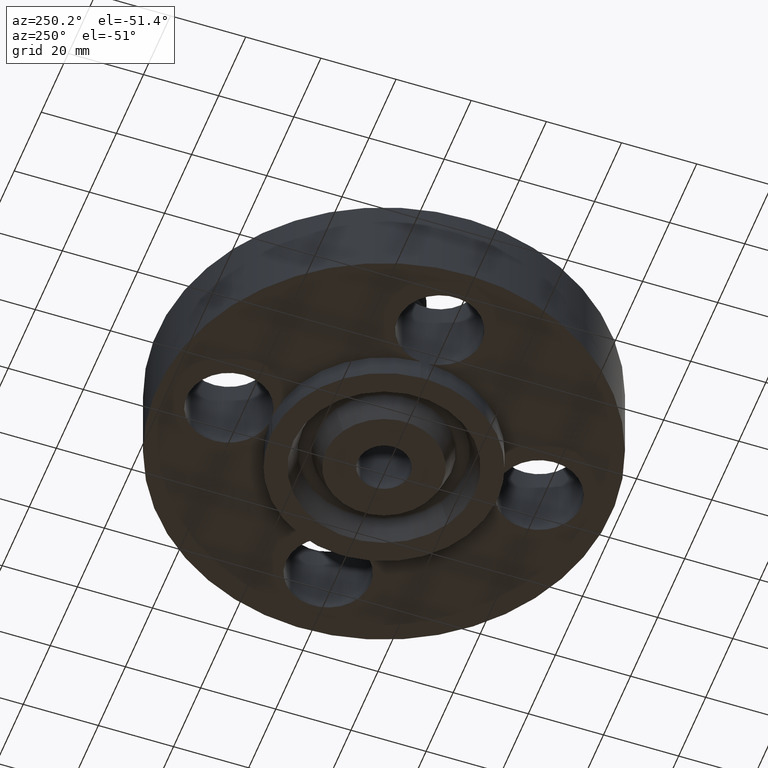
[diagram: clean part render]
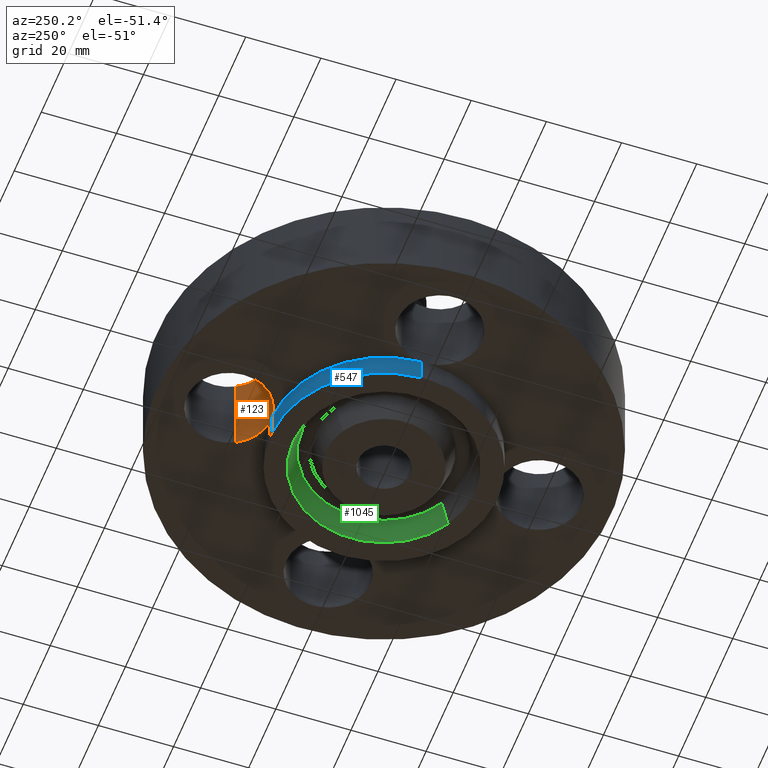
[diagram: same view with three faces highlighted in distinct colors, each labeled with its STEP entity id]
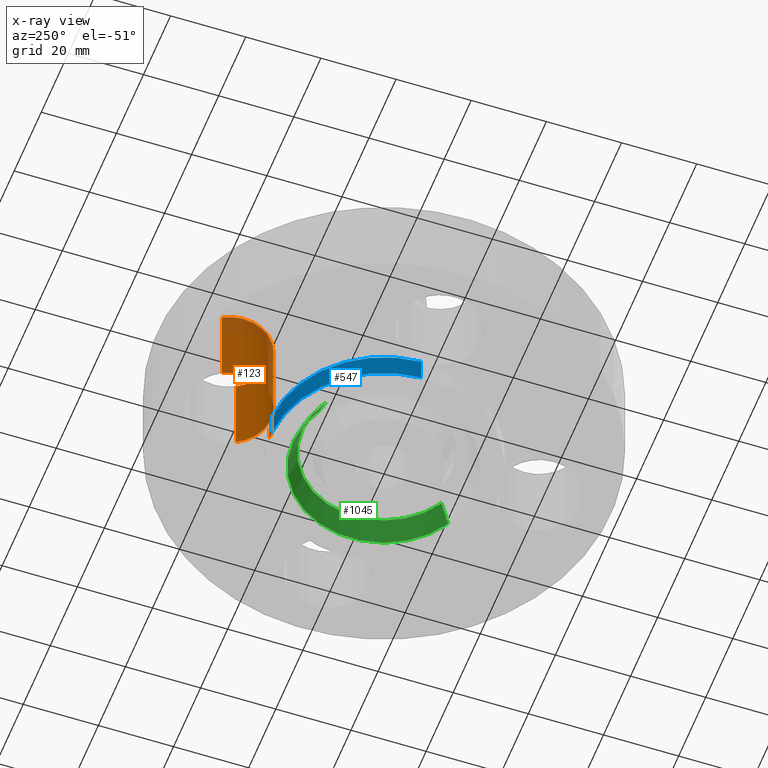
[diagram: x-ray of the same camera — body ghosted, the three highlighted faces saturated]
A machine part, auxiliary view with three faces highlighted in distinct colors.
The next image is the same camera in x-ray (body ghosted, the three faces saturated) — at least one of them is partly hidden behind the body in this view.
Their STEP definitions:

[orange] entity #123 — the highlighted cylindrical surface (partial cylindrical patch) has radius 11.176 mm, axis along (0, -0, -1).
#38=AXIS2_PLACEMENT_3D('Cylinder Axis2P3D',#35,#36,#37) ;
#77=AXIS2_PLACEMENT_3D('Circle Axis2P3D',#75,#76,$) ;
#91=AXIS2_PLACEMENT_3D('Circle Axis2P3D',#89,#90,$) ;
#105=AXIS2_PLACEMENT_3D('Circle Axis2P3D',#103,#104,$) ;
#110=AXIS2_PLACEMENT_3D('Circle Axis2P3D',#108,#109,$) ;
#35=CARTESIAN_POINT('Axis2P3D Location',(0.,1.62500000001,0.87606299213)) ;
#40=CARTESIAN_POINT('Line Origine',(-0.386136327233,1.83594723699,0.315000000001)) ;
#44=CARTESIAN_POINT('Vertex',(-0.386136327233,1.83594723699,0.)) ;
#46=CARTESIAN_POINT('Vertex',(-0.386136327233,1.83594723699,0.880000000004)) ;
#53=CARTESIAN_POINT('Vertex',(0.386136327233,1.41405276302,0.)) ;
#56=CARTESIAN_POINT('Line Origine',(0.386136327233,1.41405276302,0.315000000001)) ;
#60=CARTESIAN_POINT('Vertex',(0.386136327233,1.41405276302,0.880000000004)) ;
#75=CARTESIAN_POINT('Axis2P3D Location',(0.,1.62500000001,0.)) ;
#79=CARTESIAN_POINT('Vertex',(0.0400333532821,1.186825,0.)) ;
#82=CARTESIAN_POINT('Line Origine',(0.0400333532821,1.186825,0.315000000001)) ;
#86=CARTESIAN_POINT('Vertex',(0.0400333532822,1.186825,-0.250000000001)) ;
#89=CARTESIAN_POINT('Axis2P3D Location',(0.,1.62500000001,-0.250000000001)) ;
#93=CARTESIAN_POINT('Vertex',(-0.0400333532822,1.186825,-0.250000000001)) ;
#96=CARTESIAN_POINT('Line Origine',(-0.0400333532821,1.186825,0.315000000001)) ;
#100=CARTESIAN_POINT('Vertex',(-0.0400333532821,1.186825,0.)) ;
#103=CARTESIAN_POINT('Axis2P3D Location',(0.,1.62500000001,0.)) ;
#108=CARTESIAN_POINT('Axis2P3D Location',(0.,1.62500000001,0.880000000004)) ;
#36=DIRECTION('Axis2P3D Direction',(0.,-0.,-0.0393700787402)) ;
#37=DIRECTION('Axis2P3D XDirection',(0.0345504945626,-0.0188750212049,0.)) ;
#41=DIRECTION('Vector Direction',(0.,0.,-0.0393700787402)) ;
#57=DIRECTION('Vector Direction',(0.,0.,-0.0393700787402)) ;
#76=DIRECTION('Axis2P3D Direction',(0.,-0.,-0.0393700787402)) ;
#83=DIRECTION('Vector Direction',(0.,0.,-0.0393700787402)) ;
#90=DIRECTION('Axis2P3D Direction',(0.,-0.,-0.0393700787402)) ;
#97=DIRECTION('Vector Direction',(0.,0.,-0.0393700787402)) ;
#104=DIRECTION('Axis2P3D Direction',(0.,-0.,-0.0393700787402)) ;
#109=DIRECTION('Axis2P3D Direction',(0.,-0.,-0.0393700787402)) ;
#42=VECTOR('Line Direction',#41,0.0393700787402) ;
#58=VECTOR('Line Direction',#57,0.0393700787402) ;
#84=VECTOR('Line Direction',#83,0.0393700787402) ;
#98=VECTOR('Line Direction',#97,0.0393700787402) ;
#114=ORIENTED_EDGE('',*,*,#62,.F.) ;
#115=ORIENTED_EDGE('',*,*,#81,.T.) ;
#116=ORIENTED_EDGE('',*,*,#88,.T.) ;
#117=ORIENTED_EDGE('',*,*,#95,.T.) ;
#118=ORIENTED_EDGE('',*,*,#102,.F.) ;
#119=ORIENTED_EDGE('',*,*,#107,.T.) ;
#120=ORIENTED_EDGE('',*,*,#48,.T.) ;
#121=ORIENTED_EDGE('',*,*,#112,.F.) ;
#123=ADVANCED_FACE('PartBody',(#122),#39,.F.) ;
#78=CIRCLE('generated circle',#77,0.440000000002) ;
#92=CIRCLE('generated circle',#91,0.440000000002) ;
#106=CIRCLE('generated circle',#105,0.440000000002) ;
#111=CIRCLE('generated circle',#110,0.440000000002) ;
#39=CYLINDRICAL_SURFACE('generated cylinder',#38,0.440000000002) ;
#48=EDGE_CURVE('',#45,#47,#43,.F.) ;
#62=EDGE_CURVE('',#54,#61,#59,.F.) ;
#81=EDGE_CURVE('',#54,#80,#78,.T.) ;
#88=EDGE_CURVE('',#80,#87,#85,.T.) ;
#95=EDGE_CURVE('',#87,#94,#92,.T.) ;
#102=EDGE_CURVE('',#101,#94,#99,.T.) ;
#107=EDGE_CURVE('',#101,#45,#106,.T.) ;
#112=EDGE_CURVE('',#61,#47,#111,.T.) ;
#113=EDGE_LOOP('',(#114,#115,#116,#117,#118,#119,#120,#121)) ;
#122=FACE_OUTER_BOUND('',#113,.T.) ;
#43=LINE('Line',#40,#42) ;
#59=LINE('Line',#56,#58) ;
#85=LINE('Line',#82,#84) ;
#99=LINE('Line',#96,#98) ;
#45=VERTEX_POINT('',#44) ;
#47=VERTEX_POINT('',#46) ;
#54=VERTEX_POINT('',#53) ;
#61=VERTEX_POINT('',#60) ;
#80=VERTEX_POINT('',#79) ;
#87=VERTEX_POINT('',#86) ;
#94=VERTEX_POINT('',#93) ;
#101=VERTEX_POINT('',#100) ;

[blue] entity #547 — the highlighted cylindrical surface (partial cylindrical patch) has radius 30.1625 mm, axis along (0, 0, -1).
#127=AXIS2_PLACEMENT_3D('Cylinder Axis2P3D',#124,#125,#126) ;
#524=AXIS2_PLACEMENT_3D('Circle Axis2P3D',#522,#523,$) ;
#531=AXIS2_PLACEMENT_3D('Circle Axis2P3D',#529,#530,$) ;
#93=CARTESIAN_POINT('Vertex',(-0.0400333532822,1.186825,-0.250000000001)) ;
#96=CARTESIAN_POINT('Line Origine',(-0.0400333532821,1.186825,0.315000000001)) ;
#100=CARTESIAN_POINT('Vertex',(-0.0400333532821,1.186825,0.)) ;
#124=CARTESIAN_POINT('Axis2P3D Location',(0.,0.,1.065)) ;
#522=CARTESIAN_POINT('Axis2P3D Location',(0.,0.,0.)) ;
#526=CARTESIAN_POINT('Vertex',(-1.186825,0.0400333532821,0.)) ;
#529=CARTESIAN_POINT('Axis2P3D Location',(0.,0.,-0.250000000001)) ;
#533=CARTESIAN_POINT('Vertex',(-1.186825,0.0400333532821,-0.250000000001)) ;
#536=CARTESIAN_POINT('Line Origine',(-1.186825,0.0400333532821,-0.125000000001)) ;
#97=DIRECTION('Vector Direction',(0.,0.,-0.0393700787402)) ;
#125=DIRECTION('Axis2P3D Direction',(0.,0.,-0.0393700787402)) ;
#126=DIRECTION('Axis2P3D XDirection',(0.0188750212049,0.0345504945626,0.)) ;
#523=DIRECTION('Axis2P3D Direction',(0.,0.,-0.0393700787402)) ;
#530=DIRECTION('Axis2P3D Direction',(0.,0.,-0.0393700787402)) ;
#537=DIRECTION('Vector Direction',(0.,0.,-0.0393700787402)) ;
#98=VECTOR('Line Direction',#97,0.0393700787402) ;
#538=VECTOR('Line Direction',#537,0.0393700787402) ;
#542=ORIENTED_EDGE('',*,*,#528,.T.) ;
#543=ORIENTED_EDGE('',*,*,#102,.T.) ;
#544=ORIENTED_EDGE('',*,*,#535,.F.) ;
#545=ORIENTED_EDGE('',*,*,#540,.F.) ;
#547=ADVANCED_FACE('PartBody',(#546),#128,.T.) ;
#525=CIRCLE('generated circle',#524,1.1875) ;
#532=CIRCLE('generated circle',#531,1.1875) ;
#128=CYLINDRICAL_SURFACE('generated cylinder',#127,1.1875) ;
#102=EDGE_CURVE('',#101,#94,#99,.T.) ;
#528=EDGE_CURVE('',#527,#101,#525,.T.) ;
#535=EDGE_CURVE('',#534,#94,#532,.T.) ;
#540=EDGE_CURVE('',#527,#534,#539,.T.) ;
#541=EDGE_LOOP('',(#542,#543,#544,#545)) ;
#546=FACE_OUTER_BOUND('',#541,.T.) ;
#99=LINE('Line',#96,#98) ;
#539=LINE('Line',#536,#538) ;
#94=VERTEX_POINT('',#93) ;
#101=VERTEX_POINT('',#100) ;
#527=VERTEX_POINT('',#526) ;
#534=VERTEX_POINT('',#533) ;

[green] entity #1045 — the highlighted conical surface has half-angle 23 deg.
#906=AXIS2_PLACEMENT_3D('Circle Axis2P3D',#904,#905,$) ;
#980=AXIS2_PLACEMENT_3D('Cone Axis2P3D',#977,#978,#979) ;
#1001=AXIS2_PLACEMENT_3D('Circle Axis2P3D',#999,#1000,$) ;
#899=CARTESIAN_POINT('Vertex',(0.457132251061,-0.836774972766,-0.250000000001)) ;
#901=CARTESIAN_POINT('Vertex',(-0.457132251061,0.836774972766,-0.250000000001)) ;
#904=CARTESIAN_POINT('Axis2P3D Location',(1.04902962957E-016,-6.99353086378E-017,-0.250000000001)) ;
#946=CARTESIAN_POINT('Vertex',(-0.410099883712,0.750682801811,-0.0188873350169)) ;
#948=CARTESIAN_POINT('Vertex',(0.410099883712,-0.750682801811,-0.0188873350169)) ;
#977=CARTESIAN_POINT('Axis2P3D Location',(0.,0.,-0.0188873350169)) ;
#982=CARTESIAN_POINT('Line Origine',(-0.433616067387,0.793728887289,-0.134443667509)) ;
#987=CARTESIAN_POINT('Line Origine',(0.433616067387,-0.793728887289,-0.134443667509)) ;
#999=CARTESIAN_POINT('Axis2P3D Location',(0.,0.,-0.0188873350169)) ;
#905=DIRECTION('Axis2P3D Direction',(0.,0.,-0.0393700787402)) ;
#978=DIRECTION('Axis2P3D Direction',(-0.,-0.,-0.0393700787402)) ;
#979=DIRECTION('Axis2P3D XDirection',(-0.0188750212049,0.0345504945626,0.)) ;
#983=DIRECTION('Vector Direction',(-0.00737505833565,0.0134999537303,-0.0362403485611)) ;
#988=DIRECTION('Vector Direction',(0.00737505833565,-0.0134999537303,-0.0362403485611)) ;
#1000=DIRECTION('Axis2P3D Direction',(0.,0.,0.0393700787402)) ;
#984=VECTOR('Line Direction',#983,0.0393700787402) ;
#989=VECTOR('Line Direction',#988,0.0393700787402) ;
#1040=ORIENTED_EDGE('',*,*,#908,.T.) ;
#1041=ORIENTED_EDGE('',*,*,#991,.T.) ;
#1042=ORIENTED_EDGE('',*,*,#1003,.T.) ;
#1043=ORIENTED_EDGE('',*,*,#986,.F.) ;
#1045=ADVANCED_FACE('PartBody',(#1044),#981,.F.) ;
#907=CIRCLE('generated circle',#906,0.953500000004) ;
#1002=CIRCLE('generated circle',#1001,0.855398494011) ;
#981=CONICAL_SURFACE('Cone',#980,0.855398494011,0.401425727959) ;
#908=EDGE_CURVE('',#902,#900,#907,.T.) ;
#986=EDGE_CURVE('',#902,#947,#985,.F.) ;
#991=EDGE_CURVE('',#900,#949,#990,.F.) ;
#1003=EDGE_CURVE('',#949,#947,#1002,.T.) ;
#1039=EDGE_LOOP('',(#1040,#1041,#1042,#1043)) ;
#1044=FACE_OUTER_BOUND('',#1039,.T.) ;
#985=LINE('Line',#982,#984) ;
#990=LINE('Line',#987,#989) ;
#900=VERTEX_POINT('',#899) ;
#902=VERTEX_POINT('',#901) ;
#947=VERTEX_POINT('',#946) ;
#949=VERTEX_POINT('',#948) ;